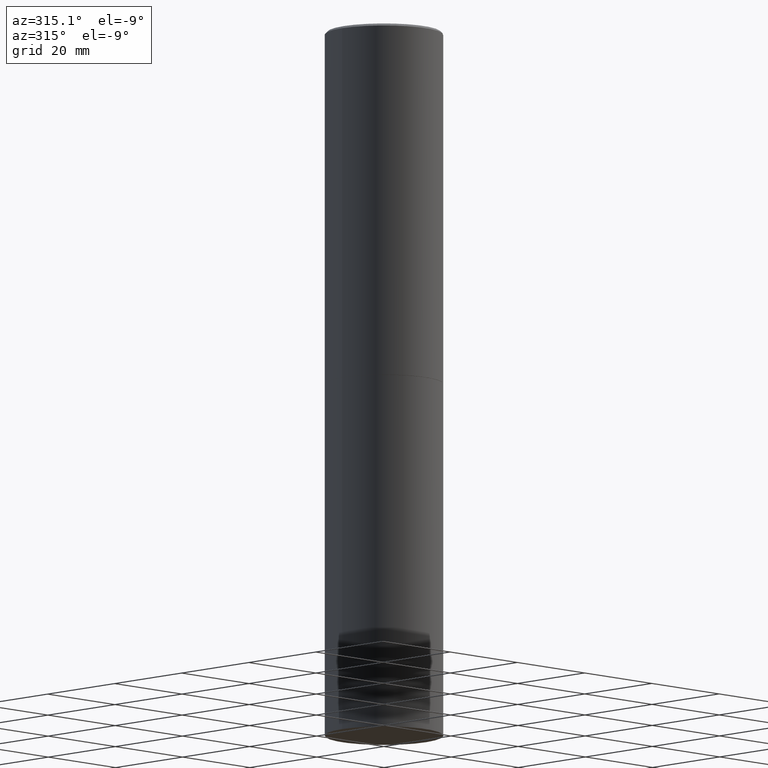
[diagram: clean part render]
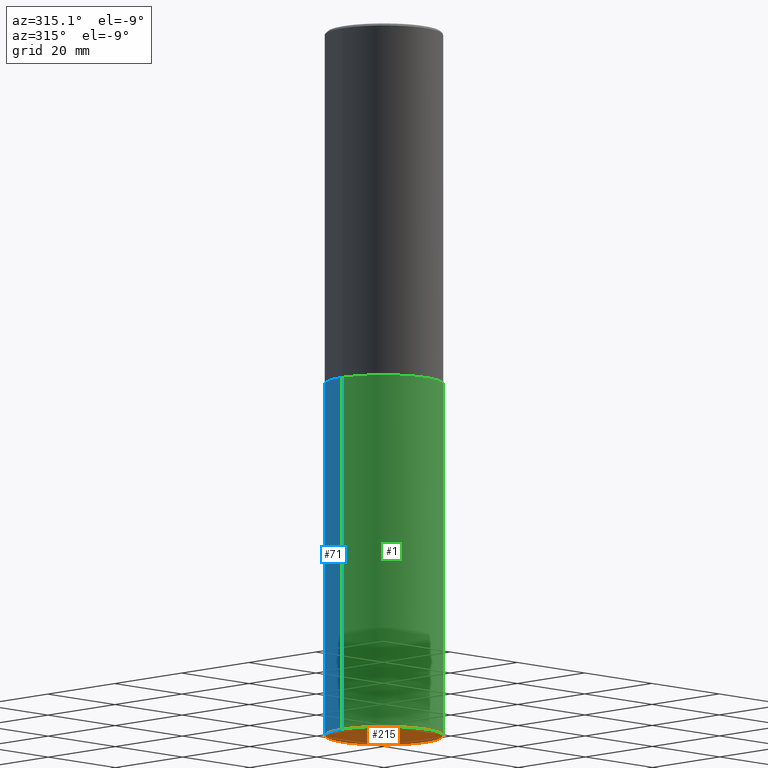
[diagram: same view with three faces highlighted in distinct colors, each labeled with its STEP entity id]
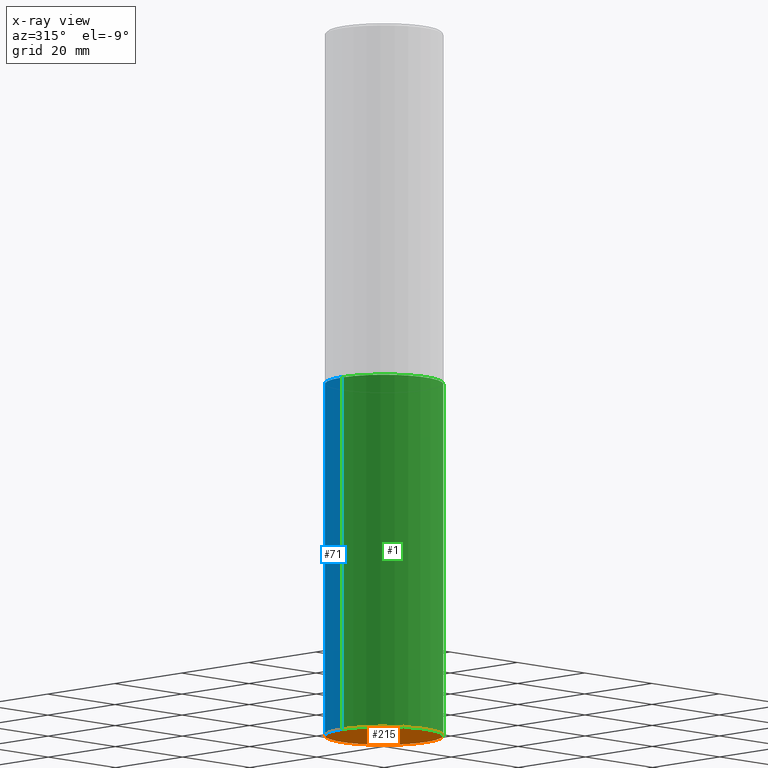
[diagram: x-ray of the same camera — body ghosted, the three highlighted faces saturated]
A machine part, auxiliary view with three faces highlighted in distinct colors.
The next image is the same camera in x-ray (body ghosted, the three faces saturated) — at least one of them is partly hidden behind the body in this view.
Their STEP definitions:

[orange] entity #215 — the highlighted planar face has unit normal (0, -0, -1).
#14 = ORIENTED_EDGE ( 'NONE', *, *, #227, .F. ) ;
#20 = FACE_OUTER_BOUND ( 'NONE', #339, .T. ) ;
#23 = DIRECTION ( 'NONE',  ( 2.438088387897960049E-29, -3.491481338843145188E-15, -1.000000000000000000 ) ) ;
#26 = CARTESIAN_POINT ( 'NONE',  ( 3.436665081823440533E-15, 0.4921499999999793262, -5.905500000000001748 ) ) ;
#75 = CARTESIAN_POINT ( 'NONE',  ( 1.444171603492632270E-28, -2.061894304653819197E-14, -5.905499999999999972 ) ) ;
#99 = AXIS2_PLACEMENT_3D ( 'NONE', #269, #187, #235 ) ;
#121 = VERTEX_POINT ( 'NONE', #265 ) ;
#133 = DIRECTION ( 'NONE',  ( 1.000000000000000000, -6.982962677686265922E-15, 0.000000000000000000 ) ) ;
#137 = AXIS2_PLACEMENT_3D ( 'NONE', #75, #184, #133 ) ;
#139 = CARTESIAN_POINT ( 'NONE',  ( -0.4921499999999999764, -1.196718392382684217E-14, -5.905499999999999972 ) ) ;
#163 = CIRCLE ( 'NONE', #99, 0.4921499999999999764 ) ;
#180 = ORIENTED_EDGE ( 'NONE', *, *, #200, .F. ) ;
#184 = DIRECTION ( 'NONE',  ( -2.445468806185136597E-29, 3.491481338843145583E-15, 1.000000000000000000 ) ) ;
#187 = DIRECTION ( 'NONE',  ( -2.445468806185136597E-29, 3.491481338843145583E-15, 1.000000000000000000 ) ) ;
#200 = EDGE_CURVE ( 'NONE', #121, #216, #163, .T. ) ;
#215 = ADVANCED_FACE ( 'NONE', ( #20 ), #293, .T. ) ;
#216 = VERTEX_POINT ( 'NONE', #139 ) ;
#227 = EDGE_CURVE ( 'NONE', #216, #121, #252, .T. ) ;
#235 = DIRECTION ( 'NONE',  ( 1.000000000000000000, -6.982962677686265922E-15, 0.000000000000000000 ) ) ;
#252 = CIRCLE ( 'NONE', #137, 0.4921499999999999764 ) ;
#265 = CARTESIAN_POINT ( 'NONE',  ( 0.4921499999999999764, -2.405560812836148932E-14, -5.905499999999999972 ) ) ;
#269 = CARTESIAN_POINT ( 'NONE',  ( 1.444171603492632270E-28, -2.061894304653819197E-14, -5.905499999999999972 ) ) ;
#293 = PLANE ( 'NONE',  #359 ) ;
#321 = DIRECTION ( 'NONE',  ( -1.000000000000000000, 6.982962677686265922E-15, -4.876176775795935793E-29 ) ) ;
#339 = EDGE_LOOP ( 'NONE', ( #180, #14 ) ) ;
#359 = AXIS2_PLACEMENT_3D ( 'NONE', #26, #23, #321 ) ;

[blue] entity #71 — the highlighted cylindrical surface (partial cylindrical patch) has radius 12.5006 mm, axis along (-0, 0, 1).
#9 = ORIENTED_EDGE ( 'NONE', *, *, #13, .F. ) ;
#13 = EDGE_CURVE ( 'NONE', #331, #261, #123, .T. ) ;
#30 = DIRECTION ( 'NONE',  ( -2.445468806185136877E-29, 3.491481338843145188E-15, 1.000000000000000000 ) ) ;
#53 = LINE ( 'NONE', #312, #92 ) ;
#56 = ORIENTED_EDGE ( 'NONE', *, *, #200, .T. ) ;
#71 = ADVANCED_FACE ( 'NONE', ( #127 ), #348, .T. ) ;
#90 = EDGE_LOOP ( 'NONE', ( #56, #196, #9, #218 ) ) ;
#92 = VECTOR ( 'NONE', #319, 39.37007874015748143 ) ;
#99 = AXIS2_PLACEMENT_3D ( 'NONE', #269, #187, #235 ) ;
#111 = AXIS2_PLACEMENT_3D ( 'NONE', #231, #224, #233 ) ;
#121 = VERTEX_POINT ( 'NONE', #265 ) ;
#123 = CIRCLE ( 'NONE', #111, 0.4921499999999999764 ) ;
#127 = FACE_OUTER_BOUND ( 'NONE', #90, .T. ) ;
#139 = CARTESIAN_POINT ( 'NONE',  ( -0.4921499999999999764, -1.196718392382684217E-14, -5.905499999999999972 ) ) ;
#160 = CARTESIAN_POINT ( 'NONE',  ( 0.4921499999999999764, -3.436665081823295777E-15, 2.399810400207969603E-29 ) ) ;
#163 = CIRCLE ( 'NONE', #99, 0.4921499999999999764 ) ;
#170 = AXIS2_PLACEMENT_3D ( 'NONE', #201, #283, #204 ) ;
#187 = DIRECTION ( 'NONE',  ( -2.445468806185136597E-29, 3.491481338843145583E-15, 1.000000000000000000 ) ) ;
#196 = ORIENTED_EDGE ( 'NONE', *, *, #356, .T. ) ;
#200 = EDGE_CURVE ( 'NONE', #121, #216, #163, .T. ) ;
#201 = CARTESIAN_POINT ( 'NONE',  ( 0.000000000000000000, 0.000000000000000000, 0.000000000000000000 ) ) ;
#204 = DIRECTION ( 'NONE',  ( 1.000000000000000000, -6.982962677686265922E-15, 4.876176775795935793E-29 ) ) ;
#216 = VERTEX_POINT ( 'NONE', #139 ) ;
#218 = ORIENTED_EDGE ( 'NONE', *, *, #250, .F. ) ;
#224 = DIRECTION ( 'NONE',  ( -2.445468806185136597E-29, 3.491481338843145583E-15, 1.000000000000000000 ) ) ;
#231 = CARTESIAN_POINT ( 'NONE',  ( 7.220735744022852519E-29, -1.030929694920215502E-14, -2.952700000000000102 ) ) ;
#233 = DIRECTION ( 'NONE',  ( 1.000000000000000000, -6.982962677686265922E-15, 0.000000000000000000 ) ) ;
#235 = DIRECTION ( 'NONE',  ( 1.000000000000000000, -6.982962677686265922E-15, 0.000000000000000000 ) ) ;
#250 = EDGE_CURVE ( 'NONE', #121, #331, #322, .T. ) ;
#261 = VERTEX_POINT ( 'NONE', #306 ) ;
#265 = CARTESIAN_POINT ( 'NONE',  ( 0.4921499999999999764, -2.405560812836148932E-14, -5.905499999999999972 ) ) ;
#269 = CARTESIAN_POINT ( 'NONE',  ( 1.444171603492632270E-28, -2.061894304653819197E-14, -5.905499999999999972 ) ) ;
#283 = DIRECTION ( 'NONE',  ( -2.445468806185136597E-29, 3.491481338843145583E-15, 1.000000000000000000 ) ) ;
#306 = CARTESIAN_POINT ( 'NONE',  ( -0.4921499999999999764, -1.196718392382684217E-14, -2.952700000000000102 ) ) ;
#312 = CARTESIAN_POINT ( 'NONE',  ( -0.4921499999999999764, 3.496936074043332897E-15, -2.420853904668951509E-29 ) ) ;
#319 = DIRECTION ( 'NONE',  ( -2.445468806185136877E-29, 3.491481338843145188E-15, 1.000000000000000000 ) ) ;
#320 = CARTESIAN_POINT ( 'NONE',  ( 0.4921499999999999764, -1.374596203102545079E-14, -2.952700000000000102 ) ) ;
#322 = LINE ( 'NONE', #160, #324 ) ;
#324 = VECTOR ( 'NONE', #30, 39.37007874015748143 ) ;
#331 = VERTEX_POINT ( 'NONE', #320 ) ;
#348 = CYLINDRICAL_SURFACE ( 'NONE', #170, 0.4921499999999999764 ) ;
#356 = EDGE_CURVE ( 'NONE', #216, #261, #53, .T. ) ;

[green] entity #1 — the highlighted cylindrical surface (partial cylindrical patch) has radius 12.5006 mm, axis along (-0, 0, 1).
#1 = ADVANCED_FACE ( 'NONE', ( #340 ), #129, .T. ) ;
#30 = DIRECTION ( 'NONE',  ( -2.445468806185136877E-29, 3.491481338843145188E-15, 1.000000000000000000 ) ) ;
#47 = AXIS2_PLACEMENT_3D ( 'NONE', #66, #255, #345 ) ;
#53 = LINE ( 'NONE', #312, #92 ) ;
#66 = CARTESIAN_POINT ( 'NONE',  ( 0.000000000000000000, 0.000000000000000000, 0.000000000000000000 ) ) ;
#75 = CARTESIAN_POINT ( 'NONE',  ( 1.444171603492632270E-28, -2.061894304653819197E-14, -5.905499999999999972 ) ) ;
#77 = DIRECTION ( 'NONE',  ( 1.000000000000000000, -6.982962677686265922E-15, 0.000000000000000000 ) ) ;
#92 = VECTOR ( 'NONE', #319, 39.37007874015748143 ) ;
#120 = EDGE_LOOP ( 'NONE', ( #144, #259, #333, #173 ) ) ;
#121 = VERTEX_POINT ( 'NONE', #265 ) ;
#129 = CYLINDRICAL_SURFACE ( 'NONE', #47, 0.4921499999999999764 ) ;
#133 = DIRECTION ( 'NONE',  ( 1.000000000000000000, -6.982962677686265922E-15, 0.000000000000000000 ) ) ;
#137 = AXIS2_PLACEMENT_3D ( 'NONE', #75, #184, #133 ) ;
#139 = CARTESIAN_POINT ( 'NONE',  ( -0.4921499999999999764, -1.196718392382684217E-14, -5.905499999999999972 ) ) ;
#144 = ORIENTED_EDGE ( 'NONE', *, *, #356, .F. ) ;
#154 = CIRCLE ( 'NONE', #258, 0.4921499999999999764 ) ;
#160 = CARTESIAN_POINT ( 'NONE',  ( 0.4921499999999999764, -3.436665081823295777E-15, 2.399810400207969603E-29 ) ) ;
#173 = ORIENTED_EDGE ( 'NONE', *, *, #275, .F. ) ;
#184 = DIRECTION ( 'NONE',  ( -2.445468806185136597E-29, 3.491481338843145583E-15, 1.000000000000000000 ) ) ;
#216 = VERTEX_POINT ( 'NONE', #139 ) ;
#227 = EDGE_CURVE ( 'NONE', #216, #121, #252, .T. ) ;
#250 = EDGE_CURVE ( 'NONE', #121, #331, #322, .T. ) ;
#252 = CIRCLE ( 'NONE', #137, 0.4921499999999999764 ) ;
#255 = DIRECTION ( 'NONE',  ( -2.445468806185136597E-29, 3.491481338843145583E-15, 1.000000000000000000 ) ) ;
#258 = AXIS2_PLACEMENT_3D ( 'NONE', #326, #301, #77 ) ;
#259 = ORIENTED_EDGE ( 'NONE', *, *, #227, .T. ) ;
#261 = VERTEX_POINT ( 'NONE', #306 ) ;
#265 = CARTESIAN_POINT ( 'NONE',  ( 0.4921499999999999764, -2.405560812836148932E-14, -5.905499999999999972 ) ) ;
#275 = EDGE_CURVE ( 'NONE', #261, #331, #154, .T. ) ;
#301 = DIRECTION ( 'NONE',  ( -2.445468806185136597E-29, 3.491481338843145583E-15, 1.000000000000000000 ) ) ;
#306 = CARTESIAN_POINT ( 'NONE',  ( -0.4921499999999999764, -1.196718392382684217E-14, -2.952700000000000102 ) ) ;
#312 = CARTESIAN_POINT ( 'NONE',  ( -0.4921499999999999764, 3.496936074043332897E-15, -2.420853904668951509E-29 ) ) ;
#319 = DIRECTION ( 'NONE',  ( -2.445468806185136877E-29, 3.491481338843145188E-15, 1.000000000000000000 ) ) ;
#320 = CARTESIAN_POINT ( 'NONE',  ( 0.4921499999999999764, -1.374596203102545079E-14, -2.952700000000000102 ) ) ;
#322 = LINE ( 'NONE', #160, #324 ) ;
#324 = VECTOR ( 'NONE', #30, 39.37007874015748143 ) ;
#326 = CARTESIAN_POINT ( 'NONE',  ( 7.220735744022852519E-29, -1.030929694920215502E-14, -2.952700000000000102 ) ) ;
#331 = VERTEX_POINT ( 'NONE', #320 ) ;
#333 = ORIENTED_EDGE ( 'NONE', *, *, #250, .T. ) ;
#340 = FACE_OUTER_BOUND ( 'NONE', #120, .T. ) ;
#345 = DIRECTION ( 'NONE',  ( 1.000000000000000000, -6.982962677686265922E-15, 4.876176775795935793E-29 ) ) ;
#356 = EDGE_CURVE ( 'NONE', #216, #261, #53, .T. ) ;